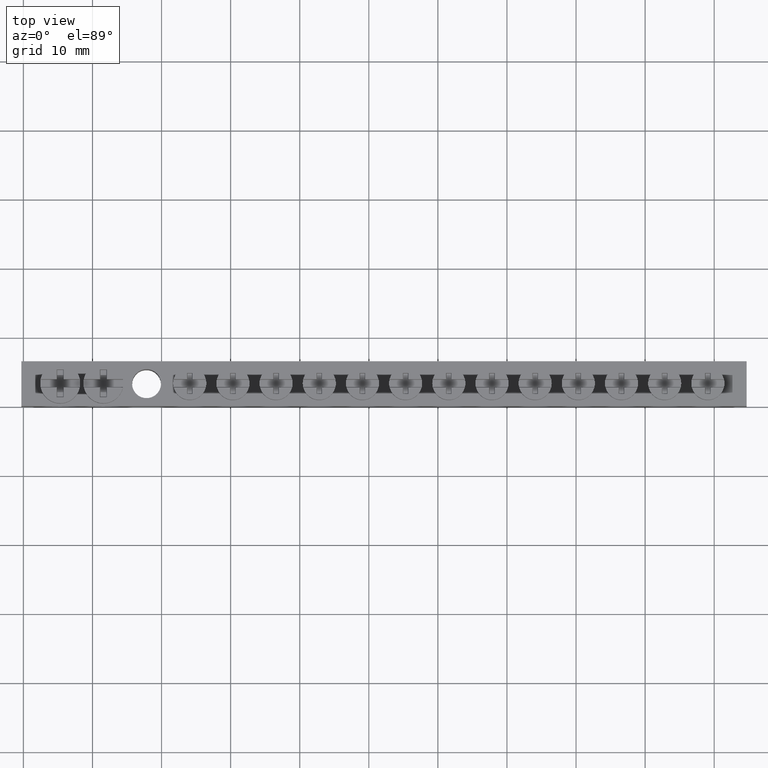
[diagram: clean part render]
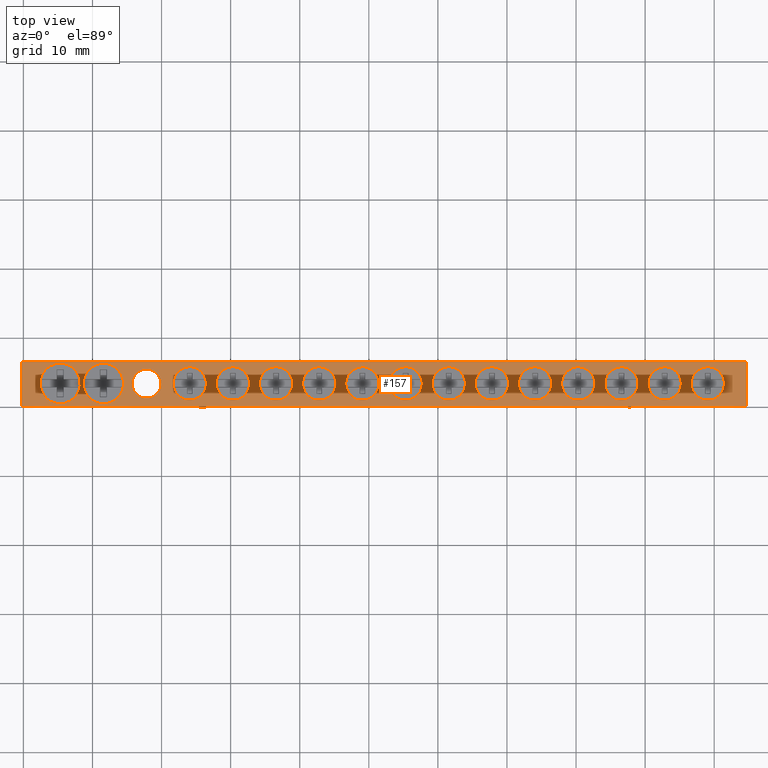
[diagram: same view with one face highlighted and labeled with its STEP entity id]
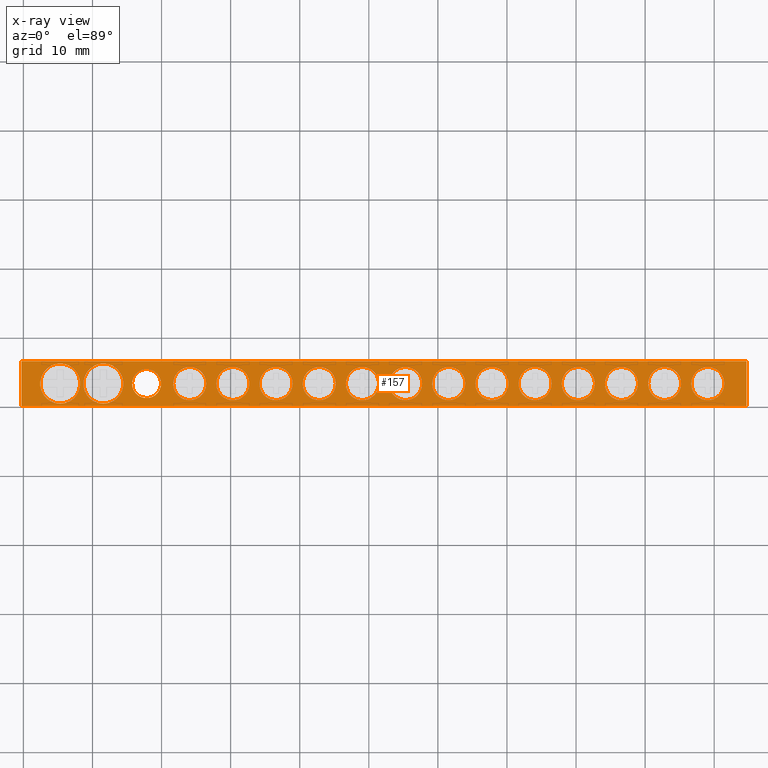
[diagram: x-ray of the same camera — body ghosted, the highlighted face saturated]
A machine part, top view. The second image highlights one B-rep face of the part: STEP entity #157.
The next image is the same camera in x-ray: the body ghosted, the highlighted face saturated — about 0% of this face is hidden behind the body in this view.
In plain terms, the highlighted planar face has unit normal (0, 0, -1).
Its self-contained STEP definition (entity closure, byte-faithful):
#157 = ADVANCED_FACE ( 'NONE', ( #1555, #1582, #1565, #1568, #1583, #1554, #1570, #1567, #1569, #1562, #1563, #1571, #1572, #1573, #1575, #1282, #1371 ), #1465, .F. ) ;
#376 = EDGE_CURVE ( 'NONE', #3531, #3559, #9351, .T. ) ;
#475 = VERTEX_POINT ( 'NONE', #6239 ) ;
#478 = VERTEX_POINT ( 'NONE', #6266 ) ;
#498 = VERTEX_POINT ( 'NONE', #6177 ) ;
#577 = VERTEX_POINT ( 'NONE', #8049 ) ;
#579 = VERTEX_POINT ( 'NONE', #8076 ) ;
#587 = VERTEX_POINT ( 'NONE', #8055 ) ;
#589 = VERTEX_POINT ( 'NONE', #8052 ) ;
#596 = VERTEX_POINT ( 'NONE', #8063 ) ;
#601 = VERTEX_POINT ( 'NONE', #8104 ) ;
#602 = VERTEX_POINT ( 'NONE', #8134 ) ;
#605 = VERTEX_POINT ( 'NONE', #8135 ) ;
#611 = VERTEX_POINT ( 'NONE', #8107 ) ;
#615 = VERTEX_POINT ( 'NONE', #8112 ) ;
#616 = VERTEX_POINT ( 'NONE', #8092 ) ;
#628 = VERTEX_POINT ( 'NONE', #8099 ) ;
#632 = VERTEX_POINT ( 'NONE', #8149 ) ;
#633 = VERTEX_POINT ( 'NONE', #8150 ) ;
#646 = VERTEX_POINT ( 'NONE', #8125 ) ;
#647 = VERTEX_POINT ( 'NONE', #8108 ) ;
#650 = VERTEX_POINT ( 'NONE', #8133 ) ;
#656 = VERTEX_POINT ( 'NONE', #8120 ) ;
#662 = VERTEX_POINT ( 'NONE', #8142 ) ;
#663 = VERTEX_POINT ( 'NONE', #8159 ) ;
#669 = VERTEX_POINT ( 'NONE', #8184 ) ;
#674 = VERTEX_POINT ( 'NONE', #8154 ) ;
#677 = VERTEX_POINT ( 'NONE', #8197 ) ;
#681 = VERTEX_POINT ( 'NONE', #8166 ) ;
#682 = VERTEX_POINT ( 'NONE', #8157 ) ;
#684 = VERTEX_POINT ( 'NONE', #8201 ) ;
#700 = VERTEX_POINT ( 'NONE', #8176 ) ;
#703 = VERTEX_POINT ( 'NONE', #8179 ) ;
#706 = VERTEX_POINT ( 'NONE', #8187 ) ;
#707 = VERTEX_POINT ( 'NONE', #8188 ) ;
#1282 = FACE_OUTER_BOUND ( 'NONE', #4328, .T. ) ;
#1371 = FACE_BOUND ( 'NONE', #4326, .T. ) ;
#1465 = PLANE ( 'NONE',  #9183 ) ;
#1519 = CARTESIAN_POINT ( 'NONE',  ( 0.0000000000000000000, 6.499999999999999100, 9.000000000000001800 ) ) ;
#1554 = FACE_BOUND ( 'NONE', #4297, .T. ) ;
#1555 = FACE_BOUND ( 'NONE', #4289, .T. ) ;
#1562 = FACE_BOUND ( 'NONE', #4340, .T. ) ;
#1563 = FACE_BOUND ( 'NONE', #4301, .T. ) ;
#1565 = FACE_BOUND ( 'NONE', #4338, .T. ) ;
#1567 = FACE_BOUND ( 'NONE', #4287, .T. ) ;
#1568 = FACE_BOUND ( 'NONE', #4315, .T. ) ;
#1569 = FACE_BOUND ( 'NONE', #4303, .T. ) ;
#1570 = FACE_BOUND ( 'NONE', #4293, .T. ) ;
#1571 = FACE_BOUND ( 'NONE', #4318, .T. ) ;
#1572 = FACE_BOUND ( 'NONE', #4284, .T. ) ;
#1573 = FACE_BOUND ( 'NONE', #4246, .T. ) ;
#1575 = FACE_BOUND ( 'NONE', #4333, .T. ) ;
#1582 = FACE_BOUND ( 'NONE', #4245, .T. ) ;
#1583 = FACE_BOUND ( 'NONE', #4272, .T. ) ;
#1762 = VERTEX_POINT ( 'NONE', #8394 ) ;
#1833 = EDGE_CURVE ( 'NONE', #706, #669, #9494, .T. ) ;
#1835 = EDGE_CURVE ( 'NONE', #589, #628, #9455, .T. ) ;
#1838 = EDGE_CURVE ( 'NONE', #681, #684, #9502, .T. ) ;
#1844 = EDGE_CURVE ( 'NONE', #602, #647, #9490, .T. ) ;
#1860 = EDGE_CURVE ( 'NONE', #650, #677, #9548, .T. ) ;
#1914 = ORIENTED_EDGE ( 'NONE', *, *, #1838, .F. ) ;
#1920 = ORIENTED_EDGE ( 'NONE', *, *, #5195, .F. ) ;
#1921 = ORIENTED_EDGE ( 'NONE', *, *, #5160, .F. ) ;
#2012 = ORIENTED_EDGE ( 'NONE', *, *, #7083, .F. ) ;
#2013 = ORIENTED_EDGE ( 'NONE', *, *, #6964, .F. ) ;
#2146 = AXIS2_PLACEMENT_3D ( 'NONE', #9671, #9672, #9686 ) ;
#2147 = AXIS2_PLACEMENT_3D ( 'NONE', #9679, #9694, #9674 ) ;
#2163 = AXIS2_PLACEMENT_3D ( 'NONE', #9643, #9662, #9644 ) ;
#2166 = VECTOR ( 'NONE', #9658, 1000.000000000000000 ) ;
#2174 = CIRCLE ( 'NONE', #2163, 2.899999999999999500 ) ;
#2180 = VECTOR ( 'NONE', #9647, 1000.000000000000000 ) ;
#2189 = CIRCLE ( 'NONE', #2146, 2.399999999999999500 ) ;
#2194 = CIRCLE ( 'NONE', #2147, 2.399999999999999500 ) ;
#2196 = CIRCLE ( 'NONE', #2197, 2.100000000000001000 ) ;
#2197 = AXIS2_PLACEMENT_3D ( 'NONE', #9683, #9681, #9690 ) ;
#2199 = VECTOR ( 'NONE', #9700, 1000.000000000000000 ) ;
#2202 = CIRCLE ( 'NONE', #2220, 2.399999999999999500 ) ;
#2203 = AXIS2_PLACEMENT_3D ( 'NONE', #9733, #9734, #9738 ) ;
#2219 = AXIS2_PLACEMENT_3D ( 'NONE', #9676, #9677, #9680 ) ;
#2220 = AXIS2_PLACEMENT_3D ( 'NONE', #9747, #9752, #9754 ) ;
#2230 = CIRCLE ( 'NONE', #2242, 2.899999999999999500 ) ;
#2239 = CIRCLE ( 'NONE', #2203, 2.399999999999999500 ) ;
#2241 = VECTOR ( 'NONE', #9768, 1000.000000000000000 ) ;
#2242 = AXIS2_PLACEMENT_3D ( 'NONE', #9744, #9728, #9745 ) ;
#2248 = CIRCLE ( 'NONE', #2219, 2.399999999999999500 ) ;
#2264 = AXIS2_PLACEMENT_3D ( 'NONE', #9795, #9808, #9812 ) ;
#2270 = CIRCLE ( 'NONE', #2304, 2.399999999999999500 ) ;
#2275 = AXIS2_PLACEMENT_3D ( 'NONE', #9786, #9804, #9792 ) ;
#2299 = CIRCLE ( 'NONE', #2264, 2.399999999999999500 ) ;
#2304 = AXIS2_PLACEMENT_3D ( 'NONE', #9835, #9834, #9823 ) ;
#2305 = CIRCLE ( 'NONE', #2275, 2.399999999999999500 ) ;
#2329 = AXIS2_PLACEMENT_3D ( 'NONE', #9860, #9867, #9870 ) ;
#2334 = CIRCLE ( 'NONE', #2329, 2.899999999999999500 ) ;
#2376 = CIRCLE ( 'NONE', #2380, 2.399999999999999500 ) ;
#2380 = AXIS2_PLACEMENT_3D ( 'NONE', #3498, #3500, #3499 ) ;
#2821 = AXIS2_PLACEMENT_3D ( 'NONE', #8888, #8890, #8873 ) ;
#2853 = AXIS2_PLACEMENT_3D ( 'NONE', #8856, #8855, #8823 ) ;
#2859 = CIRCLE ( 'NONE', #2853, 2.399999999999999500 ) ;
#2864 = CIRCLE ( 'NONE', #2821, 2.399999999999999500 ) ;
#2884 = CIRCLE ( 'NONE', #2901, 2.399999999999999500 ) ;
#2889 = CIRCLE ( 'NONE', #2909, 2.399999999999999500 ) ;
#2901 = AXIS2_PLACEMENT_3D ( 'NONE', #8940, #8909, #8915 ) ;
#2909 = AXIS2_PLACEMENT_3D ( 'NONE', #9106, #9087, #9036 ) ;
#2937 = AXIS2_PLACEMENT_3D ( 'NONE', #7983, #7979, #7963 ) ;
#2949 = CIRCLE ( 'NONE', #2937, 2.399999999999999500 ) ;
#2962 = AXIS2_PLACEMENT_3D ( 'NONE', #7155, #7142, #7162 ) ;
#2969 = CIRCLE ( 'NONE', #2962, 2.399999999999999500 ) ;
#3181 = CIRCLE ( 'NONE', #3186, 2.399999999999999500 ) ;
#3186 = AXIS2_PLACEMENT_3D ( 'NONE', #6504, #6500, #6493 ) ;
#3202 = CIRCLE ( 'NONE', #3258, 2.399999999999999500 ) ;
#3231 = CIRCLE ( 'NONE', #3244, 2.399999999999999500 ) ;
#3232 = AXIS2_PLACEMENT_3D ( 'NONE', #6569, #6564, #6546 ) ;
#3240 = AXIS2_PLACEMENT_3D ( 'NONE', #6628, #6631, #6647 ) ;
#3244 = AXIS2_PLACEMENT_3D ( 'NONE', #6568, #6558, #6541 ) ;
#3258 = AXIS2_PLACEMENT_3D ( 'NONE', #6561, #6565, #6550 ) ;
#3259 = CIRCLE ( 'NONE', #3232, 2.899999999999999500 ) ;
#3260 = CIRCLE ( 'NONE', #3240, 2.399999999999999500 ) ;
#3262 = AXIS2_PLACEMENT_3D ( 'NONE', #6620, #6621, #6676 ) ;
#3276 = CIRCLE ( 'NONE', #3262, 2.399999999999999500 ) ;
#3403 = EDGE_CURVE ( 'NONE', #707, #674, #9561, .T. ) ;
#3422 = EDGE_CURVE ( 'NONE', #700, #656, #2859, .T. ) ;
#3437 = EDGE_CURVE ( 'NONE', #677, #650, #2864, .T. ) ;
#3451 = EDGE_CURVE ( 'NONE', #663, #703, #2884, .T. ) ;
#3481 = EDGE_CURVE ( 'NONE', #646, #662, #2889, .T. ) ;
#3498 = CARTESIAN_POINT ( 'NONE',  ( 92.82500000000001700, 3.249999999999988500, 9.000000000000001800 ) ) ;
#3499 = DIRECTION ( 'NONE',  ( 1.000000000000000000, 0.0000000000000000000, 0.0000000000000000000 ) ) ;
#3500 = DIRECTION ( 'NONE',  ( 6.938893903907229900E-018, -6.938893903907229900E-018, 1.000000000000000000 ) ) ;
#3531 = VERTEX_POINT ( 'NONE', #7990 ) ;
#3559 = VERTEX_POINT ( 'NONE', #7977 ) ;
#3827 = ORIENTED_EDGE ( 'NONE', *, *, #3437, .F. ) ;
#3829 = ORIENTED_EDGE ( 'NONE', *, *, #3403, .F. ) ;
#3831 = ORIENTED_EDGE ( 'NONE', *, *, #6974, .F. ) ;
#3833 = ORIENTED_EDGE ( 'NONE', *, *, #6966, .T. ) ;
#3836 = ORIENTED_EDGE ( 'NONE', *, *, #6969, .F. ) ;
#3839 = ORIENTED_EDGE ( 'NONE', *, *, #7013, .F. ) ;
#3840 = ORIENTED_EDGE ( 'NONE', *, *, #3481, .F. ) ;
#3841 = ORIENTED_EDGE ( 'NONE', *, *, #6982, .T. ) ;
#3842 = ORIENTED_EDGE ( 'NONE', *, *, #6971, .T. ) ;
#3846 = ORIENTED_EDGE ( 'NONE', *, *, #7021, .F. ) ;
#3847 = ORIENTED_EDGE ( 'NONE', *, *, #7116, .F. ) ;
#3851 = ORIENTED_EDGE ( 'NONE', *, *, #6988, .F. ) ;
#3855 = ORIENTED_EDGE ( 'NONE', *, *, #6993, .F. ) ;
#3858 = ORIENTED_EDGE ( 'NONE', *, *, #7007, .F. ) ;
#3861 = ORIENTED_EDGE ( 'NONE', *, *, #6996, .F. ) ;
#3862 = ORIENTED_EDGE ( 'NONE', *, *, #1844, .F. ) ;
#3863 = ORIENTED_EDGE ( 'NONE', *, *, #4922, .F. ) ;
#3864 = ORIENTED_EDGE ( 'NONE', *, *, #1833, .F. ) ;
#3867 = ORIENTED_EDGE ( 'NONE', *, *, #4912, .F. ) ;
#3868 = ORIENTED_EDGE ( 'NONE', *, *, #5187, .F. ) ;
#3870 = ORIENTED_EDGE ( 'NONE', *, *, #3422, .F. ) ;
#3871 = ORIENTED_EDGE ( 'NONE', *, *, #5157, .F. ) ;
#3872 = ORIENTED_EDGE ( 'NONE', *, *, #6998, .T. ) ;
#3874 = ORIENTED_EDGE ( 'NONE', *, *, #6968, .T. ) ;
#3875 = ORIENTED_EDGE ( 'NONE', *, *, #1835, .F. ) ;
#3877 = ORIENTED_EDGE ( 'NONE', *, *, #5153, .F. ) ;
#3879 = ORIENTED_EDGE ( 'NONE', *, *, #5161, .F. ) ;
#3881 = ORIENTED_EDGE ( 'NONE', *, *, #3451, .F. ) ;
#3883 = ORIENTED_EDGE ( 'NONE', *, *, #1860, .F. ) ;
#3888 = ORIENTED_EDGE ( 'NONE', *, *, #6972, .F. ) ;
#3890 = ORIENTED_EDGE ( 'NONE', *, *, #376, .T. ) ;
#4245 = EDGE_LOOP ( 'NONE', ( #3879, #3851 ) ) ;
#4246 = EDGE_LOOP ( 'NONE', ( #3847, #3881 ) ) ;
#4272 = EDGE_LOOP ( 'NONE', ( #3868, #3858 ) ) ;
#4284 = EDGE_LOOP ( 'NONE', ( #3863, #3829 ) ) ;
#4287 = EDGE_LOOP ( 'NONE', ( #3862, #3846 ) ) ;
#4289 = EDGE_LOOP ( 'NONE', ( #2012, #2013 ) ) ;
#4293 = EDGE_LOOP ( 'NONE', ( #3875, #3861 ) ) ;
#4297 = EDGE_LOOP ( 'NONE', ( #1920, #3831 ) ) ;
#4301 = EDGE_LOOP ( 'NONE', ( #3883, #3827 ) ) ;
#4303 = EDGE_LOOP ( 'NONE', ( #3864, #3855 ) ) ;
#4315 = EDGE_LOOP ( 'NONE', ( #1921, #3839 ) ) ;
#4318 = EDGE_LOOP ( 'NONE', ( #3867, #3870 ) ) ;
#4326 = EDGE_LOOP ( 'NONE', ( #3890, #3842 ) ) ;
#4328 = EDGE_LOOP ( 'NONE', ( #3833, #3872, #3874, #3841 ) ) ;
#4333 = EDGE_LOOP ( 'NONE', ( #3877, #3840 ) ) ;
#4338 = EDGE_LOOP ( 'NONE', ( #3871, #3888 ) ) ;
#4340 = EDGE_LOOP ( 'NONE', ( #1914, #3836 ) ) ;
#4912 = EDGE_CURVE ( 'NONE', #656, #700, #2949, .T. ) ;
#4922 = EDGE_CURVE ( 'NONE', #674, #707, #2969, .T. ) ;
#5153 = EDGE_CURVE ( 'NONE', #662, #646, #3181, .T. ) ;
#5157 = EDGE_CURVE ( 'NONE', #596, #616, #3202, .T. ) ;
#5160 = EDGE_CURVE ( 'NONE', #601, #587, #3231, .T. ) ;
#5161 = EDGE_CURVE ( 'NONE', #577, #615, #3259, .T. ) ;
#5187 = EDGE_CURVE ( 'NONE', #579, #632, #3260, .T. ) ;
#5195 = EDGE_CURVE ( 'NONE', #682, #633, #3276, .T. ) ;
#5980 = DIRECTION ( 'NONE',  ( -0.0000000000000000000, -0.0000000000000000000, -1.000000000000000000 ) ) ;
#5981 = DIRECTION ( 'NONE',  ( 1.000000000000000000, 0.0000000000000000000, 0.0000000000000000000 ) ) ;
#5999 = CARTESIAN_POINT ( 'NONE',  ( 17.82499999999999600, 3.249999999999999100, 9.000000000000001800 ) ) ;
#6177 = CARTESIAN_POINT ( 'NONE',  ( 104.7000000000000000, 6.500000000000000000, 9.000000000000001800 ) ) ;
#6239 = CARTESIAN_POINT ( 'NONE',  ( -0.2999999999999999900, 0.0000000000000000000, 9.000000000000001800 ) ) ;
#6260 = DIRECTION ( 'NONE',  ( 0.0000000000000000000, 0.0000000000000000000, -1.000000000000000000 ) ) ;
#6266 = CARTESIAN_POINT ( 'NONE',  ( -0.2999999999999999900, 6.499999999999999100, 9.000000000000001800 ) ) ;
#6269 = DIRECTION ( 'NONE',  ( -1.000000000000000000, 0.0000000000000000000, -0.0000000000000000000 ) ) ;
#6493 = DIRECTION ( 'NONE',  ( 1.000000000000000000, 0.0000000000000000000, 0.0000000000000000000 ) ) ;
#6500 = DIRECTION ( 'NONE',  ( 6.938893903907229900E-018, -6.938893903907229900E-018, 1.000000000000000000 ) ) ;
#6504 = CARTESIAN_POINT ( 'NONE',  ( 99.07500000000001700, 3.249999999999988500, 9.000000000000001800 ) ) ;
#6541 = DIRECTION ( 'NONE',  ( 1.000000000000000000, 0.0000000000000000000, 0.0000000000000000000 ) ) ;
#6546 = DIRECTION ( 'NONE',  ( 0.0000000000000000000, -1.000000000000000000, 0.0000000000000000000 ) ) ;
#6550 = DIRECTION ( 'NONE',  ( 1.000000000000000000, 0.0000000000000000000, 0.0000000000000000000 ) ) ;
#6558 = DIRECTION ( 'NONE',  ( 6.938893903907229900E-018, -6.938893903907229900E-018, 1.000000000000000000 ) ) ;
#6561 = CARTESIAN_POINT ( 'NONE',  ( 24.07500000000001400, 3.249999999999988000, 9.000000000000001800 ) ) ;
#6564 = DIRECTION ( 'NONE',  ( 0.0000000000000000000, -6.938893903907228400E-018, 1.000000000000000000 ) ) ;
#6565 = DIRECTION ( 'NONE',  ( 6.938893903907229900E-018, -6.938893903907229900E-018, 1.000000000000000000 ) ) ;
#6568 = CARTESIAN_POINT ( 'NONE',  ( 30.32500000000001700, 3.249999999999988000, 9.000000000000001800 ) ) ;
#6569 = CARTESIAN_POINT ( 'NONE',  ( 11.57500000000000100, 3.250000000000002700, 9.000000000000001800 ) ) ;
#6620 = CARTESIAN_POINT ( 'NONE',  ( 42.82500000000002400, 3.249999999999988000, 9.000000000000001800 ) ) ;
#6621 = DIRECTION ( 'NONE',  ( 6.938893903907229900E-018, -6.938893903907229900E-018, 1.000000000000000000 ) ) ;
#6628 = CARTESIAN_POINT ( 'NONE',  ( 36.57500000000002400, 3.249999999999988000, 9.000000000000001800 ) ) ;
#6631 = DIRECTION ( 'NONE',  ( 6.938893903907229900E-018, -6.938893903907229900E-018, 1.000000000000000000 ) ) ;
#6647 = DIRECTION ( 'NONE',  ( 1.000000000000000000, 0.0000000000000000000, 0.0000000000000000000 ) ) ;
#6676 = DIRECTION ( 'NONE',  ( 1.000000000000000000, 0.0000000000000000000, 0.0000000000000000000 ) ) ;
#6964 = EDGE_CURVE ( 'NONE', #611, #605, #2174, .T. ) ;
#6966 = EDGE_CURVE ( 'NONE', #475, #1762, #9663, .T. ) ;
#6968 = EDGE_CURVE ( 'NONE', #498, #478, #9648, .T. ) ;
#6969 = EDGE_CURVE ( 'NONE', #684, #681, #2189, .T. ) ;
#6971 = EDGE_CURVE ( 'NONE', #3559, #3531, #2196, .T. ) ;
#6972 = EDGE_CURVE ( 'NONE', #616, #596, #2194, .T. ) ;
#6974 = EDGE_CURVE ( 'NONE', #633, #682, #2248, .T. ) ;
#6982 = EDGE_CURVE ( 'NONE', #478, #475, #9710, .T. ) ;
#6988 = EDGE_CURVE ( 'NONE', #615, #577, #2230, .T. ) ;
#6993 = EDGE_CURVE ( 'NONE', #669, #706, #2239, .T. ) ;
#6996 = EDGE_CURVE ( 'NONE', #628, #589, #2202, .T. ) ;
#6998 = EDGE_CURVE ( 'NONE', #1762, #498, #9777, .T. ) ;
#7007 = EDGE_CURVE ( 'NONE', #632, #579, #2305, .T. ) ;
#7013 = EDGE_CURVE ( 'NONE', #587, #601, #2299, .T. ) ;
#7021 = EDGE_CURVE ( 'NONE', #647, #602, #2270, .T. ) ;
#7083 = EDGE_CURVE ( 'NONE', #605, #611, #2334, .T. ) ;
#7116 = EDGE_CURVE ( 'NONE', #703, #663, #2376, .T. ) ;
#7142 = DIRECTION ( 'NONE',  ( 6.938893903907229900E-018, -6.938893903907229900E-018, 1.000000000000000000 ) ) ;
#7155 = CARTESIAN_POINT ( 'NONE',  ( 86.57500000000003100, 3.249999999999988500, 9.000000000000001800 ) ) ;
#7162 = DIRECTION ( 'NONE',  ( 1.000000000000000000, 0.0000000000000000000, 0.0000000000000000000 ) ) ;
#7963 = DIRECTION ( 'NONE',  ( 1.000000000000000000, 0.0000000000000000000, 0.0000000000000000000 ) ) ;
#7977 = CARTESIAN_POINT ( 'NONE',  ( 15.72499999999999600, 3.249999999999999600, 9.000000000000001800 ) ) ;
#7979 = DIRECTION ( 'NONE',  ( 6.938893903907229900E-018, -6.938893903907229900E-018, 1.000000000000000000 ) ) ;
#7983 = CARTESIAN_POINT ( 'NONE',  ( 80.32500000000001700, 3.249999999999988500, 9.000000000000001800 ) ) ;
#7990 = CARTESIAN_POINT ( 'NONE',  ( 19.92499999999999700, 3.249999999999999100, 9.000000000000001800 ) ) ;
#8049 = CARTESIAN_POINT ( 'NONE',  ( 11.57500000000000100, 0.3500000000000030900, 9.000000000000001800 ) ) ;
#8052 = CARTESIAN_POINT ( 'NONE',  ( 51.47500000000003000, 3.249999999999988000, 9.000000000000001800 ) ) ;
#8055 = CARTESIAN_POINT ( 'NONE',  ( 27.92500000000001800, 3.249999999999988500, 9.000000000000001800 ) ) ;
#8063 = CARTESIAN_POINT ( 'NONE',  ( 26.47500000000001200, 3.249999999999988000, 9.000000000000001800 ) ) ;
#8076 = CARTESIAN_POINT ( 'NONE',  ( 38.97500000000002300, 3.249999999999988000, 9.000000000000001800 ) ) ;
#8092 = CARTESIAN_POINT ( 'NONE',  ( 21.67500000000001500, 3.249999999999988500, 9.000000000000001800 ) ) ;
#8099 = CARTESIAN_POINT ( 'NONE',  ( 46.67500000000002600, 3.249999999999988500, 9.000000000000001800 ) ) ;
#8104 = CARTESIAN_POINT ( 'NONE',  ( 32.72500000000001600, 3.249999999999988000, 9.000000000000001800 ) ) ;
#8107 = CARTESIAN_POINT ( 'NONE',  ( 5.324999999999998400, 6.150000000000002100, 9.000000000000001800 ) ) ;
#8108 = CARTESIAN_POINT ( 'NONE',  ( 52.92500000000001800, 3.249999999999988500, 9.000000000000001800 ) ) ;
#8112 = CARTESIAN_POINT ( 'NONE',  ( 11.57500000000000100, 6.150000000000002100, 9.000000000000001800 ) ) ;
#8120 = CARTESIAN_POINT ( 'NONE',  ( 82.72500000000002300, 3.249999999999988500, 9.000000000000001800 ) ) ;
#8125 = CARTESIAN_POINT ( 'NONE',  ( 96.67500000000002600, 3.249999999999988900, 9.000000000000001800 ) ) ;
#8133 = CARTESIAN_POINT ( 'NONE',  ( 76.47500000000002300, 3.249999999999988500, 9.000000000000001800 ) ) ;
#8134 = CARTESIAN_POINT ( 'NONE',  ( 57.72500000000002300, 3.249999999999988000, 9.000000000000001800 ) ) ;
#8135 = CARTESIAN_POINT ( 'NONE',  ( 5.324999999999998400, 0.3500000000000030900, 9.000000000000001800 ) ) ;
#8142 = CARTESIAN_POINT ( 'NONE',  ( 101.4750000000000200, 3.249999999999988500, 9.000000000000001800 ) ) ;
#8149 = CARTESIAN_POINT ( 'NONE',  ( 34.17500000000002600, 3.249999999999988500, 9.000000000000001800 ) ) ;
#8150 = CARTESIAN_POINT ( 'NONE',  ( 40.42500000000002600, 3.249999999999988500, 9.000000000000001800 ) ) ;
#8154 = CARTESIAN_POINT ( 'NONE',  ( 88.97500000000002300, 3.249999999999988500, 9.000000000000001800 ) ) ;
#8157 = CARTESIAN_POINT ( 'NONE',  ( 45.22500000000002300, 3.249999999999988000, 9.000000000000001800 ) ) ;
#8159 = CARTESIAN_POINT ( 'NONE',  ( 90.42500000000002600, 3.249999999999988900, 9.000000000000001800 ) ) ;
#8166 = CARTESIAN_POINT ( 'NONE',  ( 70.22500000000002300, 3.249999999999988000, 9.000000000000001800 ) ) ;
#8176 = CARTESIAN_POINT ( 'NONE',  ( 77.92500000000002600, 3.249999999999988900, 9.000000000000001800 ) ) ;
#8179 = CARTESIAN_POINT ( 'NONE',  ( 95.22500000000002300, 3.249999999999988500, 9.000000000000001800 ) ) ;
#8184 = CARTESIAN_POINT ( 'NONE',  ( 59.17500000000001800, 3.249999999999988500, 9.000000000000001800 ) ) ;
#8187 = CARTESIAN_POINT ( 'NONE',  ( 63.97500000000001600, 3.249999999999988000, 9.000000000000001800 ) ) ;
#8188 = CARTESIAN_POINT ( 'NONE',  ( 84.17500000000002600, 3.249999999999988900, 9.000000000000001800 ) ) ;
#8197 = CARTESIAN_POINT ( 'NONE',  ( 71.67500000000002600, 3.249999999999988900, 9.000000000000001800 ) ) ;
#8201 = CARTESIAN_POINT ( 'NONE',  ( 65.42500000000002600, 3.249999999999988500, 9.000000000000001800 ) ) ;
#8394 = CARTESIAN_POINT ( 'NONE',  ( 104.7000000000000000, 0.0000000000000000000, 9.000000000000001800 ) ) ;
#8470 = DIRECTION ( 'NONE',  ( 1.000000000000000000, 0.0000000000000000000, 0.0000000000000000000 ) ) ;
#8479 = DIRECTION ( 'NONE',  ( 6.938893903907229900E-018, -6.938893903907229900E-018, 1.000000000000000000 ) ) ;
#8483 = DIRECTION ( 'NONE',  ( 1.000000000000000000, 0.0000000000000000000, 0.0000000000000000000 ) ) ;
#8487 = CARTESIAN_POINT ( 'NONE',  ( 49.07500000000003100, 3.249999999999988000, 9.000000000000001800 ) ) ;
#8488 = DIRECTION ( 'NONE',  ( 6.938893903907229900E-018, -6.938893903907229900E-018, 1.000000000000000000 ) ) ;
#8495 = CARTESIAN_POINT ( 'NONE',  ( 61.57500000000001700, 3.249999999999988000, 9.000000000000001800 ) ) ;
#8505 = DIRECTION ( 'NONE',  ( 6.938893903907229900E-018, -6.938893903907229900E-018, 1.000000000000000000 ) ) ;
#8509 = CARTESIAN_POINT ( 'NONE',  ( 67.82500000000001700, 3.249999999999988000, 9.000000000000001800 ) ) ;
#8512 = DIRECTION ( 'NONE',  ( 1.000000000000000000, 0.0000000000000000000, 0.0000000000000000000 ) ) ;
#8513 = DIRECTION ( 'NONE',  ( 6.938893903907229900E-018, -6.938893903907229900E-018, 1.000000000000000000 ) ) ;
#8514 = CARTESIAN_POINT ( 'NONE',  ( 55.32500000000001700, 3.249999999999988000, 9.000000000000001800 ) ) ;
#8541 = DIRECTION ( 'NONE',  ( 1.000000000000000000, 0.0000000000000000000, 0.0000000000000000000 ) ) ;
#8569 = CARTESIAN_POINT ( 'NONE',  ( 74.07500000000003100, 3.249999999999988500, 9.000000000000001800 ) ) ;
#8570 = DIRECTION ( 'NONE',  ( 6.938893903907229900E-018, -6.938893903907229900E-018, 1.000000000000000000 ) ) ;
#8571 = DIRECTION ( 'NONE',  ( 1.000000000000000000, 0.0000000000000000000, 0.0000000000000000000 ) ) ;
#8791 = DIRECTION ( 'NONE',  ( 1.000000000000000000, 0.0000000000000000000, 0.0000000000000000000 ) ) ;
#8798 = DIRECTION ( 'NONE',  ( 6.938893903907229900E-018, -6.938893903907229900E-018, 1.000000000000000000 ) ) ;
#8817 = CARTESIAN_POINT ( 'NONE',  ( 86.57500000000003100, 3.249999999999988500, 9.000000000000001800 ) ) ;
#8823 = DIRECTION ( 'NONE',  ( 1.000000000000000000, 0.0000000000000000000, 0.0000000000000000000 ) ) ;
#8855 = DIRECTION ( 'NONE',  ( 6.938893903907229900E-018, -6.938893903907229900E-018, 1.000000000000000000 ) ) ;
#8856 = CARTESIAN_POINT ( 'NONE',  ( 80.32500000000001700, 3.249999999999988500, 9.000000000000001800 ) ) ;
#8873 = DIRECTION ( 'NONE',  ( 1.000000000000000000, 0.0000000000000000000, 0.0000000000000000000 ) ) ;
#8888 = CARTESIAN_POINT ( 'NONE',  ( 74.07500000000003100, 3.249999999999988500, 9.000000000000001800 ) ) ;
#8890 = DIRECTION ( 'NONE',  ( 6.938893903907229900E-018, -6.938893903907229900E-018, 1.000000000000000000 ) ) ;
#8909 = DIRECTION ( 'NONE',  ( 6.938893903907229900E-018, -6.938893903907229900E-018, 1.000000000000000000 ) ) ;
#8915 = DIRECTION ( 'NONE',  ( 1.000000000000000000, 0.0000000000000000000, 0.0000000000000000000 ) ) ;
#8940 = CARTESIAN_POINT ( 'NONE',  ( 92.82500000000001700, 3.249999999999988500, 9.000000000000001800 ) ) ;
#9036 = DIRECTION ( 'NONE',  ( 1.000000000000000000, 0.0000000000000000000, 0.0000000000000000000 ) ) ;
#9057 = AXIS2_PLACEMENT_3D ( 'NONE', #8817, #8798, #8791 ) ;
#9087 = DIRECTION ( 'NONE',  ( 6.938893903907229900E-018, -6.938893903907229900E-018, 1.000000000000000000 ) ) ;
#9106 = CARTESIAN_POINT ( 'NONE',  ( 99.07500000000001700, 3.249999999999988500, 9.000000000000001800 ) ) ;
#9183 = AXIS2_PLACEMENT_3D ( 'NONE', #1519, #6260, #6269 ) ;
#9351 = CIRCLE ( 'NONE', #9369, 2.100000000000001000 ) ;
#9369 = AXIS2_PLACEMENT_3D ( 'NONE', #5999, #5980, #5981 ) ;
#9455 = CIRCLE ( 'NONE', #9458, 2.399999999999999500 ) ;
#9457 = AXIS2_PLACEMENT_3D ( 'NONE', #8495, #8479, #8483 ) ;
#9458 = AXIS2_PLACEMENT_3D ( 'NONE', #8487, #8488, #8470 ) ;
#9460 = AXIS2_PLACEMENT_3D ( 'NONE', #8509, #8513, #8512 ) ;
#9464 = AXIS2_PLACEMENT_3D ( 'NONE', #8514, #8505, #8541 ) ;
#9490 = CIRCLE ( 'NONE', #9464, 2.399999999999999500 ) ;
#9494 = CIRCLE ( 'NONE', #9457, 2.399999999999999500 ) ;
#9502 = CIRCLE ( 'NONE', #9460, 2.399999999999999500 ) ;
#9539 = AXIS2_PLACEMENT_3D ( 'NONE', #8569, #8570, #8571 ) ;
#9548 = CIRCLE ( 'NONE', #9539, 2.399999999999999500 ) ;
#9561 = CIRCLE ( 'NONE', #9057, 2.399999999999999500 ) ;
#9643 = CARTESIAN_POINT ( 'NONE',  ( 5.324999999999998400, 3.250000000000002700, 9.000000000000001800 ) ) ;
#9644 = DIRECTION ( 'NONE',  ( 0.0000000000000000000, -1.000000000000000000, 0.0000000000000000000 ) ) ;
#9646 = CARTESIAN_POINT ( 'NONE',  ( 0.0000000000000000000, 0.0000000000000000000, 9.000000000000001800 ) ) ;
#9647 = DIRECTION ( 'NONE',  ( 1.000000000000000000, 0.0000000000000000000, -0.0000000000000000000 ) ) ;
#9648 = LINE ( 'NONE', #9653, #2166 ) ;
#9653 = CARTESIAN_POINT ( 'NONE',  ( 0.0000000000000000000, 6.499999999999999100, 9.000000000000001800 ) ) ;
#9658 = DIRECTION ( 'NONE',  ( -1.000000000000000000, -8.308062624409994900E-018, -0.0000000000000000000 ) ) ;
#9662 = DIRECTION ( 'NONE',  ( 0.0000000000000000000, -6.938893903907228400E-018, 1.000000000000000000 ) ) ;
#9663 = LINE ( 'NONE', #9646, #2180 ) ;
#9671 = CARTESIAN_POINT ( 'NONE',  ( 67.82500000000001700, 3.249999999999988000, 9.000000000000001800 ) ) ;
#9672 = DIRECTION ( 'NONE',  ( 6.938893903907229900E-018, -6.938893903907229900E-018, 1.000000000000000000 ) ) ;
#9674 = DIRECTION ( 'NONE',  ( 1.000000000000000000, 0.0000000000000000000, 0.0000000000000000000 ) ) ;
#9676 = CARTESIAN_POINT ( 'NONE',  ( 42.82500000000002400, 3.249999999999988000, 9.000000000000001800 ) ) ;
#9677 = DIRECTION ( 'NONE',  ( 6.938893903907229900E-018, -6.938893903907229900E-018, 1.000000000000000000 ) ) ;
#9679 = CARTESIAN_POINT ( 'NONE',  ( 24.07500000000001400, 3.249999999999988000, 9.000000000000001800 ) ) ;
#9680 = DIRECTION ( 'NONE',  ( 1.000000000000000000, 0.0000000000000000000, 0.0000000000000000000 ) ) ;
#9681 = DIRECTION ( 'NONE',  ( -0.0000000000000000000, -0.0000000000000000000, -1.000000000000000000 ) ) ;
#9683 = CARTESIAN_POINT ( 'NONE',  ( 17.82499999999999600, 3.249999999999999100, 9.000000000000001800 ) ) ;
#9686 = DIRECTION ( 'NONE',  ( 1.000000000000000000, 0.0000000000000000000, 0.0000000000000000000 ) ) ;
#9690 = DIRECTION ( 'NONE',  ( 1.000000000000000000, 0.0000000000000000000, 0.0000000000000000000 ) ) ;
#9694 = DIRECTION ( 'NONE',  ( 6.938893903907229900E-018, -6.938893903907229900E-018, 1.000000000000000000 ) ) ;
#9700 = DIRECTION ( 'NONE',  ( 0.0000000000000000000, -1.000000000000000000, 0.0000000000000000000 ) ) ;
#9710 = LINE ( 'NONE', #9717, #2199 ) ;
#9717 = CARTESIAN_POINT ( 'NONE',  ( -0.2999999999999999900, 6.499999999999999100, 9.000000000000001800 ) ) ;
#9728 = DIRECTION ( 'NONE',  ( 0.0000000000000000000, -6.938893903907228400E-018, 1.000000000000000000 ) ) ;
#9733 = CARTESIAN_POINT ( 'NONE',  ( 61.57500000000001700, 3.249999999999988000, 9.000000000000001800 ) ) ;
#9734 = DIRECTION ( 'NONE',  ( 6.938893903907229900E-018, -6.938893903907229900E-018, 1.000000000000000000 ) ) ;
#9738 = DIRECTION ( 'NONE',  ( 1.000000000000000000, 0.0000000000000000000, 0.0000000000000000000 ) ) ;
#9744 = CARTESIAN_POINT ( 'NONE',  ( 11.57500000000000100, 3.250000000000002700, 9.000000000000001800 ) ) ;
#9745 = DIRECTION ( 'NONE',  ( 0.0000000000000000000, -1.000000000000000000, 0.0000000000000000000 ) ) ;
#9747 = CARTESIAN_POINT ( 'NONE',  ( 49.07500000000003100, 3.249999999999988000, 9.000000000000001800 ) ) ;
#9752 = DIRECTION ( 'NONE',  ( 6.938893903907229900E-018, -6.938893903907229900E-018, 1.000000000000000000 ) ) ;
#9754 = DIRECTION ( 'NONE',  ( 1.000000000000000000, 0.0000000000000000000, 0.0000000000000000000 ) ) ;
#9767 = CARTESIAN_POINT ( 'NONE',  ( 104.7000000000000000, 6.499999999999999100, 9.000000000000001800 ) ) ;
#9768 = DIRECTION ( 'NONE',  ( 0.0000000000000000000, 1.000000000000000000, 0.0000000000000000000 ) ) ;
#9777 = LINE ( 'NONE', #9767, #2241 ) ;
#9786 = CARTESIAN_POINT ( 'NONE',  ( 36.57500000000002400, 3.249999999999988000, 9.000000000000001800 ) ) ;
#9792 = DIRECTION ( 'NONE',  ( 1.000000000000000000, 0.0000000000000000000, 0.0000000000000000000 ) ) ;
#9795 = CARTESIAN_POINT ( 'NONE',  ( 30.32500000000001700, 3.249999999999988000, 9.000000000000001800 ) ) ;
#9804 = DIRECTION ( 'NONE',  ( 6.938893903907229900E-018, -6.938893903907229900E-018, 1.000000000000000000 ) ) ;
#9808 = DIRECTION ( 'NONE',  ( 6.938893903907229900E-018, -6.938893903907229900E-018, 1.000000000000000000 ) ) ;
#9812 = DIRECTION ( 'NONE',  ( 1.000000000000000000, 0.0000000000000000000, 0.0000000000000000000 ) ) ;
#9823 = DIRECTION ( 'NONE',  ( 1.000000000000000000, 0.0000000000000000000, 0.0000000000000000000 ) ) ;
#9834 = DIRECTION ( 'NONE',  ( 6.938893903907229900E-018, -6.938893903907229900E-018, 1.000000000000000000 ) ) ;
#9835 = CARTESIAN_POINT ( 'NONE',  ( 55.32500000000001700, 3.249999999999988000, 9.000000000000001800 ) ) ;
#9860 = CARTESIAN_POINT ( 'NONE',  ( 5.324999999999998400, 3.250000000000002700, 9.000000000000001800 ) ) ;
#9867 = DIRECTION ( 'NONE',  ( 0.0000000000000000000, -6.938893903907228400E-018, 1.000000000000000000 ) ) ;
#9870 = DIRECTION ( 'NONE',  ( 0.0000000000000000000, -1.000000000000000000, 0.0000000000000000000 ) ) ;